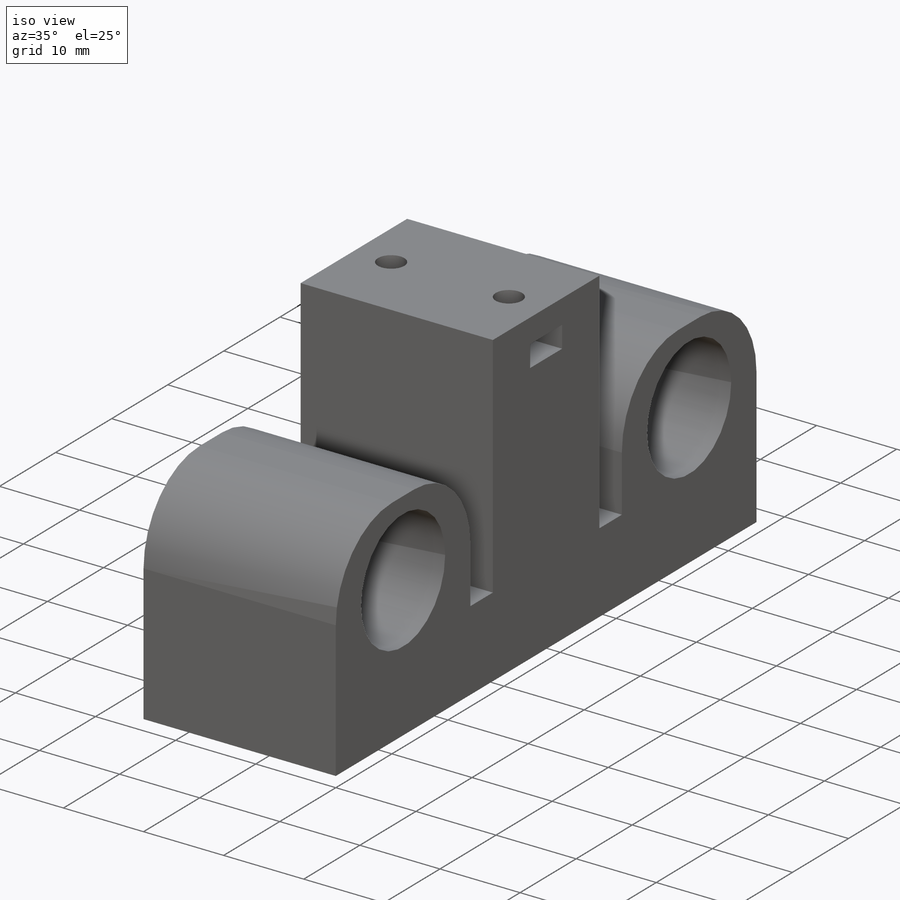
[diagram: iso view]
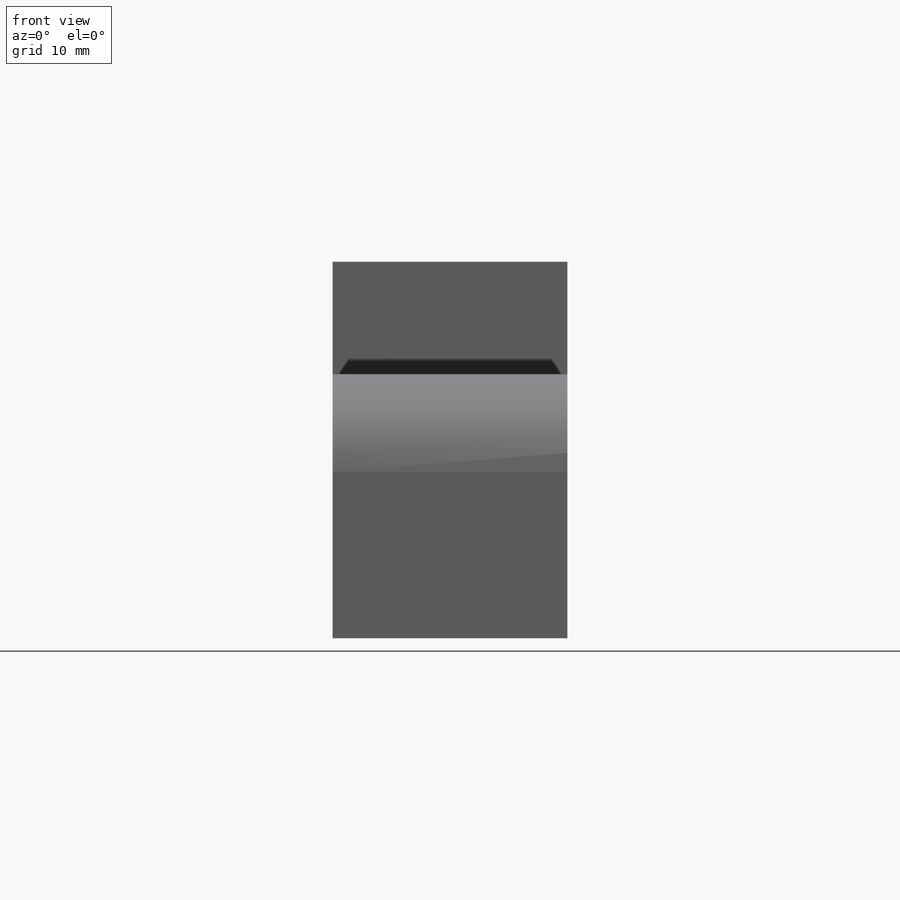
[diagram: front view]
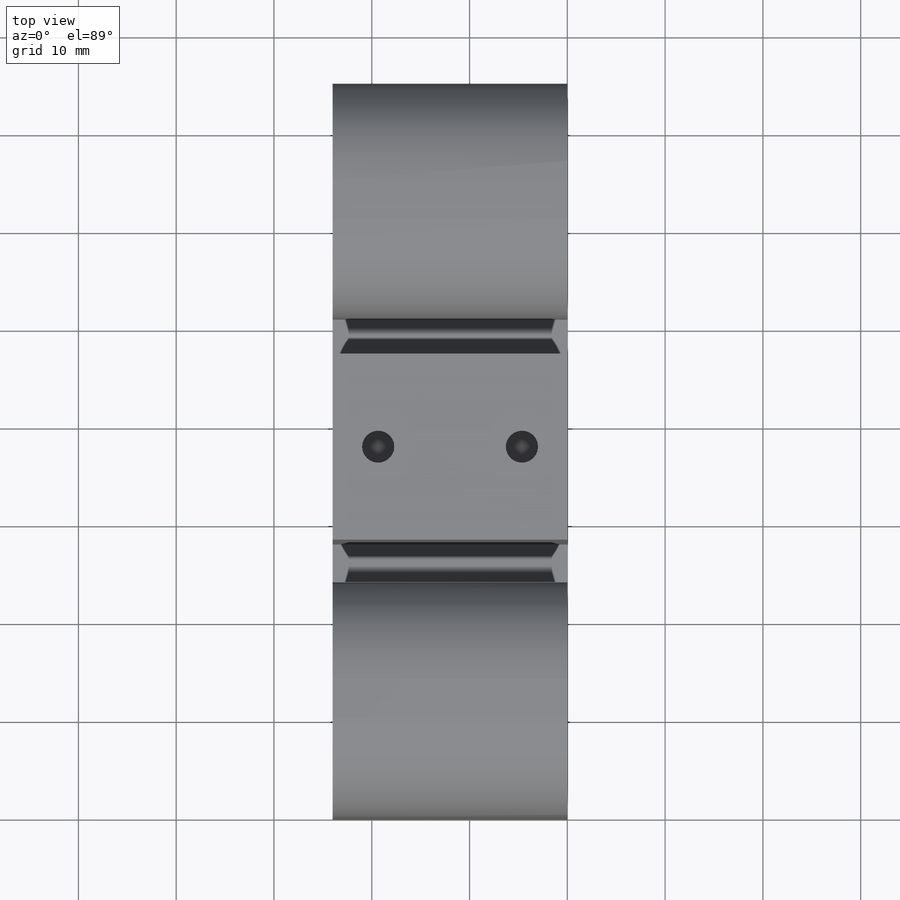
[diagram: top view]
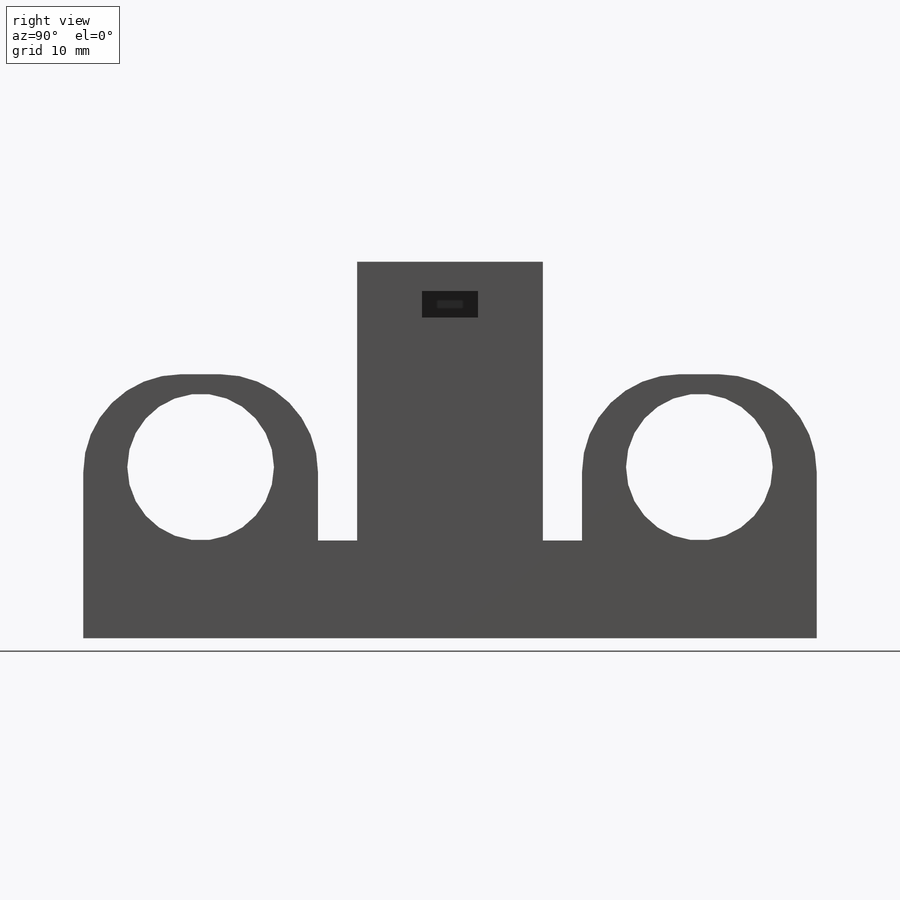
[diagram: right view]
SOLIDWORKS PART (.sldprt)
format: sldprt  version: not decoded by parser v0  size: 269,312 bytes
history: native  units: mm
features: sketch x7, cut_extrude x4, extrude x3, material x1, fillet x1 (+11 scaffold rows collapsed)
feature tree (27):
  scaffold x11  (default folders/planes/origin — collapsed)
  material  "Material <not specified>"
  sketch  "Sketch1"  dims[c1.D1=~56.868564mm c1.D2=~74.991513mm c2.D1=75.0mm c2.D2=24.0mm]
  extrude  "Boss-Extrude1"  Depth=10mm
  sketch  "Sketch2"  dims[c1.D1=25.5mm c1.D2=25.5mm c1.D3=~12.776848mm c1.D4=24.0mm c2.D3=~9.314578mm c2.D4=~14.654341mm c3.D3=15.0mm c3.D4=~25.51478mm c3.D5=24.0mm c4.D4=24.0mm c4.D3=15.0mm c5.D4=24.0mm c5.D3=~22.477754mm c6.D4=24.0mm c6.D3=~2.390107mm c7.D4=~5.812114mm]
  extrude  "Boss-Extrude2"  Depth=17mm
  sketch  "Sketch3"  dims[D1=15.0mm]
  cut_extrude  "Cut-Extrude1"  [1 undecoded]
  fillet  "Fillet1"  Radius=10mm
  sketch  "Sketch4"  dims[c1.D1=~4.077487mm c1.D2=24.0mm c2.D1=9.5mm c2.D2=8.0mm]
  extrude  "Boss-Extrude3"  Depth=28.5mm
  sketch  "Sketch5"  dims[c1.D1=~2.794331mm c1.D2=~4.916001mm c2.D1=5.7mm c2.D2=2.7mm c2.D3=3.0mm]
  cut_extrude  "Cut-Extrude2"  Depth=11mm
  cut_extrude  "Cut-Extrude3"  [1 undecoded]
  sketch  "Sketch5<2>"  dims[D1=11.0mm]
  sketch  "Sketch6"  dims[D1=3.3mm D2=3.0mm]
  cut_extrude  "Cut-Extrude4"  [1 undecoded]
decode coverage: 12 of 15 modeling features carry decoded parameters
note: ~ marks probable driven/reference dimensions
note: 3 parameter values undecoded
summary: no parameter record found for 3 features
note: suppression state not decoded; provenance and decode notes live in map.json
